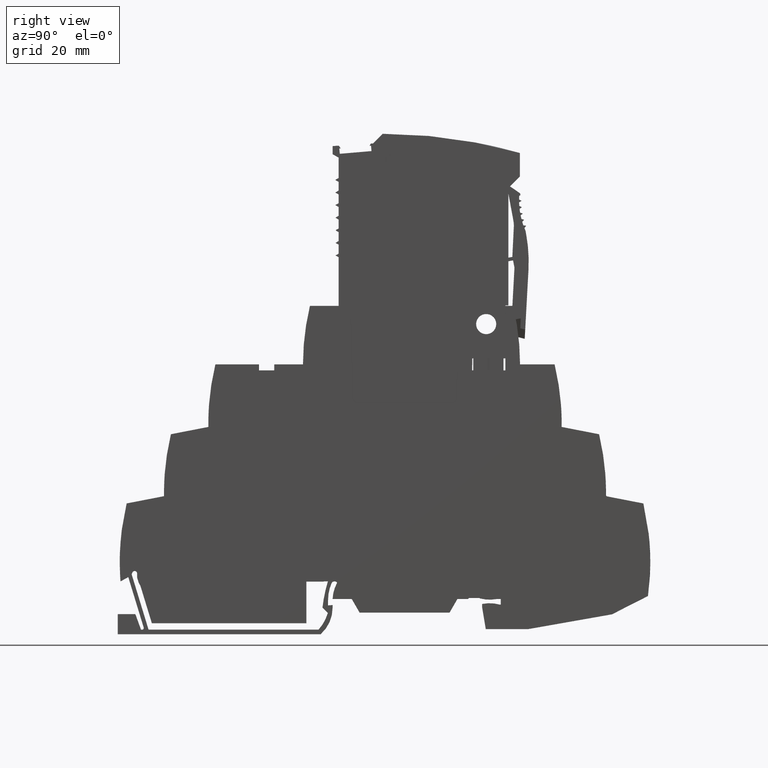
[diagram: clean part render]
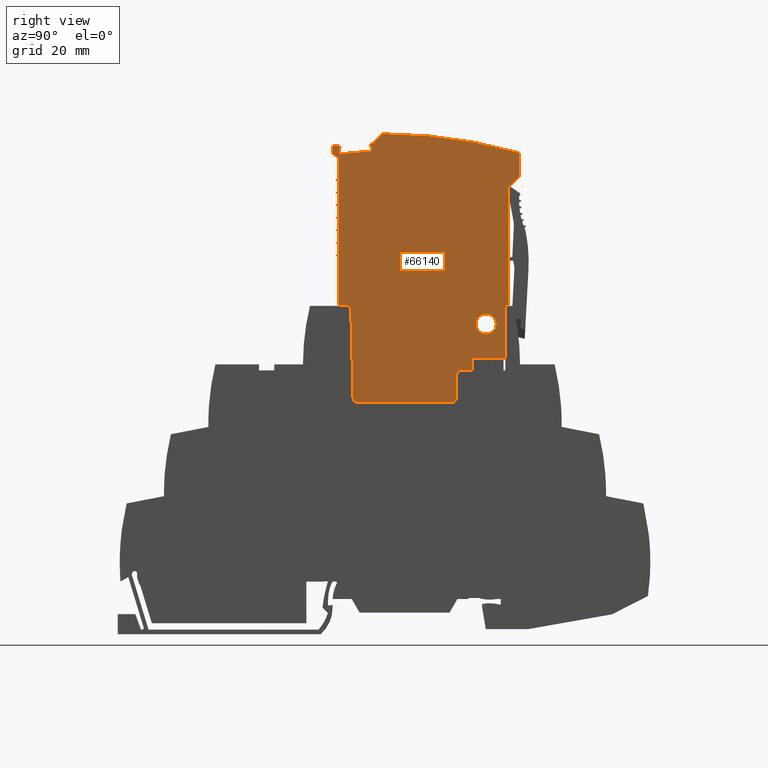
[diagram: same view with one face highlighted and labeled with its STEP entity id]
A machine part, right view. The second image highlights one B-rep face of the part: STEP entity #66140.
In plain terms, the highlighted planar face has unit normal (1, -0, -0).
Its self-contained STEP definition (entity closure, byte-faithful):
#56750=CARTESIAN_POINT('',(0.,47.7986343961721,6.3000000446248));
#56760=DIRECTION('',(0.999999999999995,-9.92840027691511E-8,
1.27233440234887E-9));
#56770=VECTOR('',#56760,1.);
#56780=LINE('',#56750,#56770);
#56790=CARTESIAN_POINT('',(-5.65384003677915,47.798634957508,
6.30000003743122));
#56800=VERTEX_POINT('',#56790);
#56810=CARTESIAN_POINT('',(0.823692447720572,47.7986343143926,
6.30000004567281));
#56820=VERTEX_POINT('',#56810);
#56830=EDGE_CURVE('',#56800,#56820,#56780,.T.);
#61780=CARTESIAN_POINT('',(1.50276344436281,81.6300278559835,
6.30000004653682));
#61790=VERTEX_POINT('',#61780);
#61820=CARTESIAN_POINT('',(1.50276199735806,81.630026408979,
6.30000004653682));
#61830=DIRECTION('',(0.707106781186548,0.707106781186547,
8.99675992685931E-10));
#61840=VECTOR('',#61830,1.);
#61850=LINE('',#61820,#61840);
#61860=CARTESIAN_POINT('',(3.79238029727594,83.9196447088967,
6.30000004944997));
#61870=VERTEX_POINT('',#61860);
#61880=EDGE_CURVE('',#61790,#61870,#61850,.T.);
#63070=CARTESIAN_POINT('',(0.823692453333029,47.7986349575081,
6.30000004567281));
#63080=DIRECTION('',(0.0087266347785965,0.999961922197761,
1.11032298385166E-11));
#63090=VECTOR('',#63080,1.);
#63100=LINE('',#63070,#63090);
#63110=CARTESIAN_POINT('',(0.91543323909314,58.310968153533,
6.30000004578954));
#63120=VERTEX_POINT('',#63110);
#63130=EDGE_CURVE('',#56820,#63120,#63100,.T.);
#63700=CARTESIAN_POINT('',(-13.0403049895551,96.0690412262468,
6.30000002803317));
#63710=DIRECTION('',(-1.27233440234888E-9,-1.58421928793978E-24,1.));
#63720=DIRECTION('',(0.999999999999995,9.92840025734579E-8,
1.27233440234887E-9));
#63730=AXIS2_PLACEMENT_3D('',#63700,#63710,#63720);
#63740=PLANE('',#63730);
#63750=CARTESIAN_POINT('',(-2.89964321690515,54.6030366982365,
6.30000004093548));
#63760=DIRECTION('',(-8.27874684295384E-18,1.10352364417225E-9,-1.));
#63770=DIRECTION('',(0.207911690818063,-0.978147600733741,
-1.07940900662129E-9));
#63780=AXIS2_PLACEMENT_3D('',#63750,#63760,#63770);
#63790=CIRCLE('',#63780,2.);
#63800=CARTESIAN_POINT('',(-4.89964321690515,54.6030366982365,
6.30000004093548));
#63810=VERTEX_POINT('',#63800);
#63820=CARTESIAN_POINT('',(-0.89964321690515,54.6030366982365,
6.30000004093548));
#63830=VERTEX_POINT('',#63820);
#63840=EDGE_CURVE('',#63810,#63830,#63790,.T.);
#63850=ORIENTED_EDGE('',*,*,#63840,.T.);
#63860=EDGE_CURVE('',#63830,#63810,#63790,.T.);
#63870=ORIENTED_EDGE('',*,*,#63860,.T.);
#63880=EDGE_LOOP('',(#63870,#63850));
#63890=FACE_BOUND('',#63880,.T.);
#63900=CARTESIAN_POINT('',(-32.0225309487305,88.9246952015105,
6.30000000388143));
#63910=DIRECTION('',(-0.0849203170204,0.99638774568797,
-1.08047273260181E-10));
#63920=VECTOR('',#63910,1.);
#63930=LINE('',#63900,#63920);
#63940=CARTESIAN_POINT('',(-31.9800707902202,88.426501328666,
6.30000000393545));
#63950=VERTEX_POINT('',#63940);
#63960=CARTESIAN_POINT('',(-32.0709798358291,89.4931560727262,
6.30000000381979));
#63970=VERTEX_POINT('',#63960);
#63980=EDGE_CURVE('',#63950,#63970,#63930,.T.);
#63990=ORIENTED_EDGE('',*,*,#63980,.T.);
#64000=CARTESIAN_POINT('',(-26.176112171587,88.92116217531,
6.30000001132003));
#64010=DIRECTION('',(-0.99638774568797,-0.0849203170204034,
-1.26773833996995E-9));
#64020=VECTOR('',#64010,1.);
#64030=LINE('',#64000,#64020);
#64040=CARTESIAN_POINT('',(-25.6779182987438,88.9636223338203,
6.3000000119539));
#64050=VERTEX_POINT('',#64040);
#64060=EDGE_CURVE('',#64050,#63950,#64030,.T.);
#64070=ORIENTED_EDGE('',*,*,#64060,.T.);
#64080=CARTESIAN_POINT('',(-25.7688273458873,90.030277095885,
6.30000001183823));
#64090=DIRECTION('',(0.0849203170204188,-0.996387745687968,
1.08046948391849E-10));
#64100=VECTOR('',#64090,1.);
#64110=LINE('',#64080,#64100);
#64120=CARTESIAN_POINT('',(-25.7688273458872,90.0302770958849,
6.30000001183823));
#64130=VERTEX_POINT('',#64120);
#64140=EDGE_CURVE('',#64130,#64050,#64110,.T.);
#64150=ORIENTED_EDGE('',*,*,#64140,.T.);
#64160=CARTESIAN_POINT('',(0.,92.2265074258215,6.3000000446248));
#64170=DIRECTION('',(0.996387745687969,0.0849203170204144,
1.26773841424566E-9));
#64180=VECTOR('',#64170,1.);
#64190=LINE('',#64160,#64180);
#64200=CARTESIAN_POINT('',(-26.0398510780884,90.0071782356689,
6.3000000114934));
#64210=VERTEX_POINT('',#64200);
#64220=EDGE_CURVE('',#64210,#64130,#64190,.T.);
#64230=ORIENTED_EDGE('',*,*,#64220,.T.);
#64240=CARTESIAN_POINT('',(-68.257012075395,0.,6.29999995777905));
#64250=DIRECTION('',(0.424650721006602,0.905357258295626,
5.40297695472702E-10));
#64260=VECTOR('',#64250,1.);
#64270=LINE('',#64240,#64260);
#64280=CARTESIAN_POINT('',(-25.829789102938,90.4550313170048,
6.30000042188093));
#64290=VERTEX_POINT('',#64280);
#64300=EDGE_CURVE('',#64210,#64290,#64270,.T.);
#64310=ORIENTED_EDGE('',*,*,#64300,.F.);
#64320=CARTESIAN_POINT('',(-6.59696852790767,-259.01613861369,
6.30000003623125));
#64330=DIRECTION('',(4.2914011530532E-18,1.1035235845829E-9,-1.));
#64340=DIRECTION('',(-0.0544140920450259,0.99851845580686,
1.10188866539066E-9));
#64350=AXIS2_PLACEMENT_3D('',#64320,#64330,#64340);
#64360=CIRCLE('',#64350,350.);
#64370=CARTESIAN_POINT('',(-25.3835324039076,90.4793048726777,
6.30000042190771));
#64380=VERTEX_POINT('',#64370);
#64390=EDGE_CURVE('',#64290,#64380,#64360,.T.);
#64400=ORIENTED_EDGE('',*,*,#64390,.F.);
#64410=CARTESIAN_POINT('',(-23.7561712545598,92.1066555594288,
6.30000001439901));
#64420=DIRECTION('',(-0.707109054248472,-0.707104508117316,
-8.99679235216046E-10));
#64430=VECTOR('',#64420,1.);
#64440=LINE('',#64410,#64430);
#64450=CARTESIAN_POINT('',(-23.4620154295483,92.400809493259,
6.30000001477327));
#64460=VERTEX_POINT('',#64450);
#64470=EDGE_CURVE('',#64460,#64380,#64440,.T.);
#64480=ORIENTED_EDGE('',*,*,#64470,.T.);
#64490=CARTESIAN_POINT('',(-23.5582147547322,-7.59914423517946,
6.30000001465087));
#64500=DIRECTION('',(-5.04620731356756E-18,-1.10352358808745E-9,1.));
#64510=DIRECTION('',(0.262397378243297,0.96495990377375,
1.06485601669704E-9));
#64520=AXIS2_PLACEMENT_3D('',#64490,#64500,#64510);
#64530=CIRCLE('',#64520,100.);
#64540=CARTESIAN_POINT('',(3.78649011320289,88.5895615243094,
6.30000004944248));
#64550=VERTEX_POINT('',#64540);
#64560=EDGE_CURVE('',#64550,#64460,#64530,.T.);
#64570=ORIENTED_EDGE('',*,*,#64560,.T.);
#64580=CARTESIAN_POINT('',(3.89822846849755,0.,6.30000004958465));
#64590=DIRECTION('',(0.00126130284980064,-0.999999204557244,
1.60479886757853E-12));
#64600=VECTOR('',#64590,1.);
#64610=LINE('',#64580,#64600);
#64620=EDGE_CURVE('',#64550,#61870,#64610,.T.);
#64630=ORIENTED_EDGE('',*,*,#64620,.F.);
#64640=ORIENTED_EDGE('',*,*,#61880,.T.);
#64650=CARTESIAN_POINT('',(1.50275273455216,0.,6.3000000465368));
#64660=DIRECTION('',(-1.48925771131792E-7,-0.999999999999989,
-1.89483374648265E-16));
#64670=VECTOR('',#64660,1.);
#64680=LINE('',#64650,#64670);
#64690=CARTESIAN_POINT('',(1.50276286556278,58.3109681826894,
6.30000004653682));
#64700=VERTEX_POINT('',#64690);
#64710=EDGE_CURVE('',#61790,#64700,#64680,.T.);
#64720=ORIENTED_EDGE('',*,*,#64710,.F.);
#64730=CARTESIAN_POINT('',(0.,58.3109681080889,6.3000000446248));
#64740=DIRECTION('',(-0.999999999999999,-4.96422109530492E-8,
-1.27233440234888E-9));
#64750=VECTOR('',#64740,1.);
#64760=LINE('',#64730,#64750);
#64770=EDGE_CURVE('',#64700,#63120,#64760,.T.);
#64780=ORIENTED_EDGE('',*,*,#64770,.F.);
#64790=ORIENTED_EDGE('',*,*,#63130,.T.);
#64800=ORIENTED_EDGE('',*,*,#56830,.T.);
#64810=CARTESIAN_POINT('',(-5.69398692008819,45.4986346930015,
6.30000003738014));
#64820=DIRECTION('',(0.0174525057061637,0.999847693423641,
2.22057155310626E-11));
#64830=VECTOR('',#64820,1.);
#64840=LINE('',#64810,#64830);
#64850=CARTESIAN_POINT('',(-5.69398692253148,45.4986344994978,
6.30000003738014));
#64860=VERTEX_POINT('',#64850);
#64870=EDGE_CURVE('',#64860,#56800,#64840,.T.);
#64880=ORIENTED_EDGE('',*,*,#64870,.T.);
#64890=CARTESIAN_POINT('',(0.,45.4986339341759,6.3000000446248));
#64900=DIRECTION('',(-0.999999999999995,9.92840029634401E-8,
-1.27233440234887E-9));
#64910=VECTOR('',#64900,1.);
#64920=LINE('',#64890,#64910);
#64930=CARTESIAN_POINT('',(-7.64297974787529,45.4986346930013,
6.30000003490037));
#64940=VERTEX_POINT('',#64930);
#64950=EDGE_CURVE('',#64860,#64940,#64920,.T.);
#64960=ORIENTED_EDGE('',*,*,#64950,.F.);
#64970=CARTESIAN_POINT('',(-7.64297924124064,44.3986346930014,
6.30000003490037));
#64980=DIRECTION('',(1.51573144520413E-21,8.68361963371745E-20,-1.));
#64990=DIRECTION('',(-0.999847695156387,0.0174524064375057,0.));
#65000=AXIS2_PLACEMENT_3D('',#64970,#64980,#64990);
#65010=CIRCLE('',#65000,1.1);
#65020=CARTESIAN_POINT('',(-8.74281170591264,44.4178323400825,
6.30000003350102));
#65030=VERTEX_POINT('',#65020);
#65040=EDGE_CURVE('',#65030,#64940,#65010,.T.);
#65050=ORIENTED_EDGE('',*,*,#65040,.T.);
#65060=CARTESIAN_POINT('',(-8.82119367783118,39.9273321763251,
6.30000003340129));
#65070=DIRECTION('',(0.0174524064372837,0.999847695156391,
2.22053296847798E-11));
#65080=VECTOR('',#65070,1.);
#65090=LINE('',#65060,#65080);
#65100=CARTESIAN_POINT('',(-8.82119367783119,39.9273321763251,
6.30000003340129));
#65110=VERTEX_POINT('',#65100);
#65120=EDGE_CURVE('',#65110,#65030,#65090,.T.);
#65130=ORIENTED_EDGE('',*,*,#65120,.T.);
#65140=CARTESIAN_POINT('',(-9.72105660347197,39.9430393421184,
6.30000003225637));
#65150=DIRECTION('',(-4.25831783639541E-18,-2.7967969593273E-23,1.));
#65160=DIRECTION('',(6.56784454970232E-6,-0.999999999978432,
5.87747175411144E-39));
#65170=AXIS2_PLACEMENT_3D('',#65140,#65150,#65160);
#65180=CIRCLE('',#65170,0.9);
#65190=CARTESIAN_POINT('',(-9.72105364794497,39.0430393421233,
6.30000003225637));
#65200=VERTEX_POINT('',#65190);
#65210=EDGE_CURVE('',#65200,#65110,#65180,.T.);
#65220=ORIENTED_EDGE('',*,*,#65210,.T.);
#65230=CARTESIAN_POINT('',(0.,39.0430393421184,6.3000000446248));
#65240=DIRECTION('',(-1.,0.,-1.27233440234888E-9));
#65250=VECTOR('',#65240,1.);
#65260=LINE('',#65230,#65250);
#65270=CARTESIAN_POINT('',(-28.4302587167585,39.0430393421232,
6.300000008452));
#65280=VERTEX_POINT('',#65270);
#65290=EDGE_CURVE('',#65200,#65280,#65260,.T.);
#65300=ORIENTED_EDGE('',*,*,#65290,.F.);
#65310=CARTESIAN_POINT('',(-28.4302616897223,39.9430393421183,
6.300000008452));
#65320=DIRECTION('',(-2.58996344244003E-21,9.8906713505408E-20,1.));
#65330=DIRECTION('',(-0.999657324975578,-0.026176948307079,0.));
#65340=AXIS2_PLACEMENT_3D('',#65310,#65320,#65330);
#65350=CIRCLE('',#65340,0.9);
#65360=CARTESIAN_POINT('',(-29.3299532822003,39.9194800886416,
6.300000008452));
#65370=VERTEX_POINT('',#65360);
#65380=EDGE_CURVE('',#65370,#65280,#65350,.T.);
#65390=ORIENTED_EDGE('',*,*,#65380,.T.);
#65400=CARTESIAN_POINT('',(-29.7835008092065,57.2397613629776,
6.30000000673023));
#65410=DIRECTION('',(0.0261769483078747,-0.999657324975557,
3.33058605425129E-11));
#65420=VECTOR('',#65410,1.);
#65430=LINE('',#65400,#65420);
#65440=CARTESIAN_POINT('',(-29.7835008092064,57.2397613629773,
6.30000000533114));
#65450=VERTEX_POINT('',#65440);
#65460=EDGE_CURVE('',#65450,#65370,#65430,.T.);
#65470=ORIENTED_EDGE('',*,*,#65460,.T.);
#65480=CARTESIAN_POINT('',(-30.8831238666795,57.2109667198385,
6.30000000533114));
#65490=DIRECTION('',(4.25831775433271E-18,2.42245071722835E-26,-1.));
#65500=DIRECTION('',(-5.68875048078218E-9,1.,0.));
#65510=AXIS2_PLACEMENT_3D('',#65480,#65490,#65500);
#65520=CIRCLE('',#65510,1.10000000000001);
#65530=CARTESIAN_POINT('',(-30.8831239423302,58.3109667198385,
6.30000000533114));
#65540=VERTEX_POINT('',#65530);
#65550=EDGE_CURVE('',#65540,#65450,#65520,.T.);
#65560=ORIENTED_EDGE('',*,*,#65550,.T.);
#65570=CARTESIAN_POINT('',(0.,58.3109707920224,6.3000000446248));
#65580=DIRECTION('',(-0.999999999999991,-1.31857899599019E-7,
-1.27233440234888E-9));
#65590=VECTOR('',#65580,1.);
#65600=LINE('',#65570,#65590);
#65610=CARTESIAN_POINT('',(-32.2143310897267,58.3109665443083,
6.3000000036374));
#65620=VERTEX_POINT('',#65610);
#65630=EDGE_CURVE('',#65540,#65620,#65600,.T.);
#65640=ORIENTED_EDGE('',*,*,#65630,.F.);
#65650=CARTESIAN_POINT('',(-32.2143484577651,0.,6.30000000363738));
#65660=DIRECTION('',(2.97852008862565E-7,0.999999999999956,
3.78967331631682E-16));
#65670=VECTOR('',#65660,1.);
#65680=LINE('',#65650,#65670);
#65690=CARTESIAN_POINT('',(-32.2143223474418,87.662068922897,
6.30000000363741));
#65700=VERTEX_POINT('',#65690);
#65710=EDGE_CURVE('',#65620,#65700,#65680,.T.);
#65720=ORIENTED_EDGE('',*,*,#65710,.F.);
#65730=CARTESIAN_POINT('',(-33.1400135810732,88.1965173734466,
6.30000000245962));
#65740=DIRECTION('',(0.866025254858393,-0.50000025794739,
1.10187221873626E-9));
#65750=VECTOR('',#65740,1.);
#65760=LINE('',#65730,#65750);
#65770=CARTESIAN_POINT('',(-33.3900136670533,88.340855089668,
6.30000000214154));
#65780=VERTEX_POINT('',#65770);
#65790=EDGE_CURVE('',#65780,#65700,#65760,.T.);
#65800=ORIENTED_EDGE('',*,*,#65790,.T.);
#65810=CARTESIAN_POINT('',(-33.390039979555,0.,6.3000000021415));
#65820=DIRECTION('',(2.97852014774502E-7,0.999999999999956,
3.78967358101462E-16));
#65830=VECTOR('',#65820,1.);
#65840=LINE('',#65810,#65830);
#65850=CARTESIAN_POINT('',(-33.3900131857319,89.9568299067439,
6.30000000214154));
#65860=VERTEX_POINT('',#65850);
#65870=EDGE_CURVE('',#65780,#65860,#65840,.T.);
#65880=ORIENTED_EDGE('',*,*,#65870,.F.);
#65890=CARTESIAN_POINT('',(-6.59696852790767,-259.01613861369,
6.30000003623125));
#65900=DIRECTION('',(-4.29544390782417E-18,-1.10352358468662E-9,1.));
#65910=DIRECTION('',(-0.0735550024569542,0.997291161904866,
1.10053431764559E-9));
#65920=AXIS2_PLACEMENT_3D('',#65890,#65900,#65910);
#65930=CIRCLE('',#65920,350.);
#65940=CARTESIAN_POINT('',(-32.1707224971672,90.0483011505457,
6.30000000369288));
#65950=VERTEX_POINT('',#65940);
#65960=EDGE_CURVE('',#65950,#65860,#65930,.T.);
#65970=ORIENTED_EDGE('',*,*,#65960,.T.);
#65980=CARTESIAN_POINT('',(30.5811420122174,0.,6.30000008353424));
#65990=DIRECTION('',(-0.571737024681002,0.820436941275145,
-7.27440663261802E-10));
#66000=VECTOR('',#65990,1.);
#66010=LINE('',#65980,#66000);
#66020=CARTESIAN_POINT('',(-31.7999560166451,89.5162549403556,
6.30000000416462));
#66030=VERTEX_POINT('',#66020);
#66040=EDGE_CURVE('',#66030,#65950,#66010,.T.);
#66050=ORIENTED_EDGE('',*,*,#66040,.T.);
#66060=CARTESIAN_POINT('',(0.,92.2265074076855,6.3000000446248));
#66070=DIRECTION('',(-0.99638774568797,-0.0849203170203965,
-1.26773840730676E-9));
#66080=VECTOR('',#66070,1.);
#66090=LINE('',#66060,#66080);
#66100=EDGE_CURVE('',#66030,#63970,#66090,.T.);
#66110=ORIENTED_EDGE('',*,*,#66100,.F.);
#66120=EDGE_LOOP('',(#66110,#66050,#65970,#65880,#65800,#65720,#65640,
#65560,#65470,#65390,#65300,#65220,#65130,#65050,#64960,#64880,#64800,
#64790,#64780,#64720,#64640,#64630,#64570,#64480,#64400,#64310,#64230,
#64150,#64070,#63990));
#66130=FACE_OUTER_BOUND('',#66120,.T.);
#66140=ADVANCED_FACE('',(#63890,#66130),#63740,.T.);